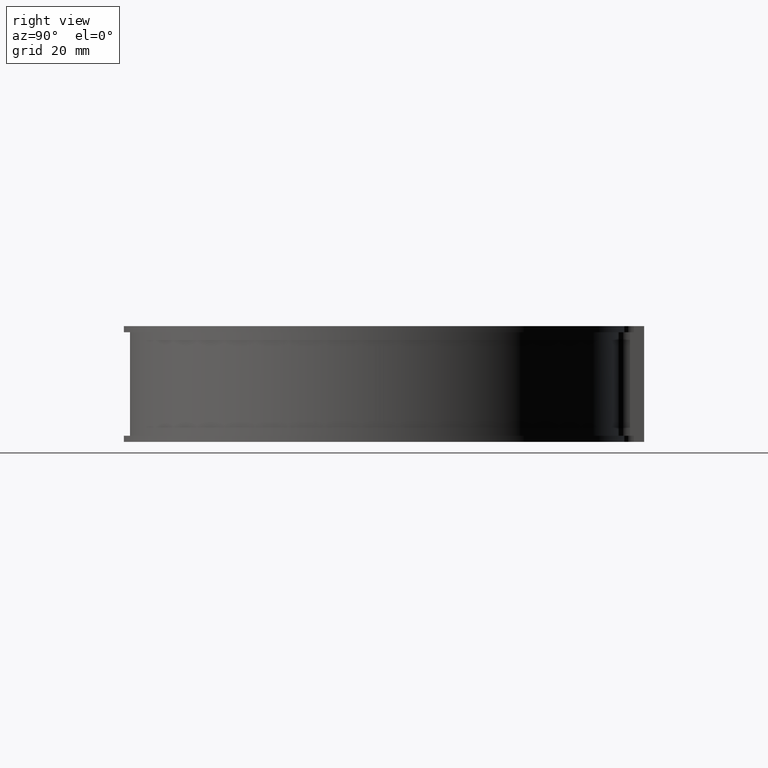
[diagram: clean part render]
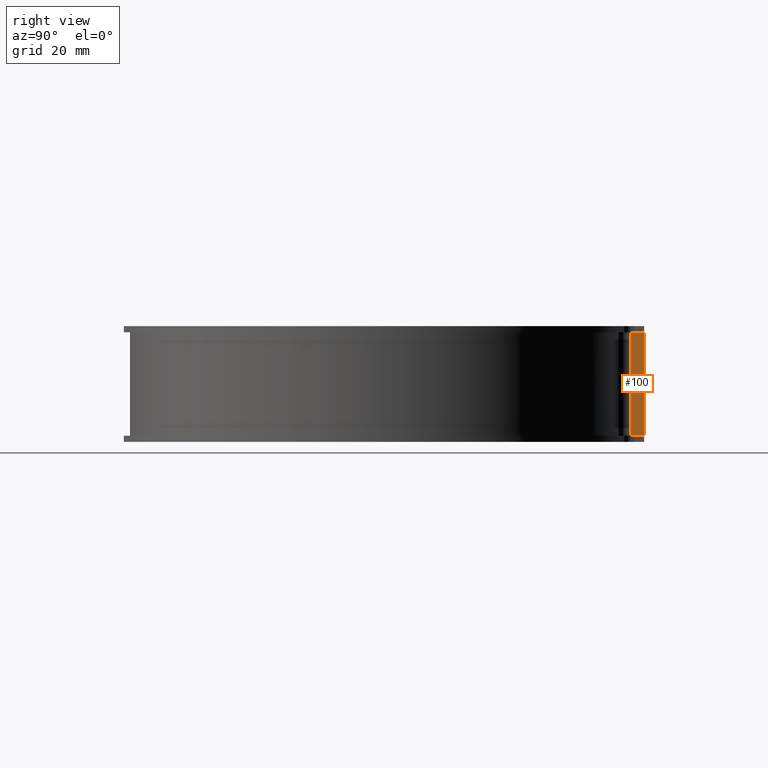
[diagram: same view with one face highlighted and labeled with its STEP entity id]
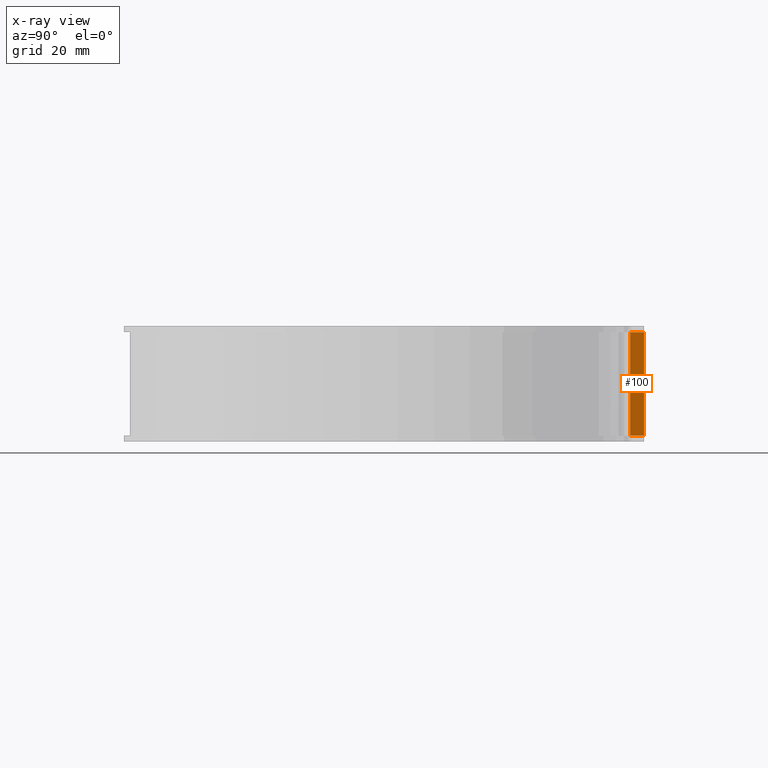
[diagram: x-ray of the same camera — body ghosted, the highlighted face saturated]
A machine part, right view. The second image highlights one B-rep face of the part: STEP entity #100.
The next image is the same camera in x-ray: the body ghosted, the highlighted face saturated — about 0% of this face is hidden behind the body in this view.
In plain terms, the highlighted planar face has unit normal (1, 0, 0).
Its self-contained STEP definition (entity closure, byte-faithful):
#100 = ADVANCED_FACE( '', ( #152 ), #153, .T. );
#152 = FACE_OUTER_BOUND( '', #204, .T. );
#153 = PLANE( '', #205 );
#204 = EDGE_LOOP( '', ( #421, #422, #423, #424 ) );
#205 = AXIS2_PLACEMENT_3D( '', #425, #426, #427 );
#421 = ORIENTED_EDGE( '', *, *, #499, .F. );
#422 = ORIENTED_EDGE( '', *, *, #453, .T. );
#423 = ORIENTED_EDGE( '', *, *, #439, .T. );
#424 = ORIENTED_EDGE( '', *, *, #498, .F. );
#425 = CARTESIAN_POINT( '', ( 4.00000000000000, 61.7545342464827, -14.0000000000000 ) );
#426 = DIRECTION( '', ( 1.00000000000000, 8.32667268468867E-017, 0.000000000000000 ) );
#427 = DIRECTION( '', ( 8.32667268468867E-017, -1.00000000000000, 0.000000000000000 ) );
#439 = EDGE_CURVE( '', #523, #521, #524, .T. );
#453 = EDGE_CURVE( '', #548, #523, #549, .T. );
#498 = EDGE_CURVE( '', #616, #521, #618, .T. );
#499 = EDGE_CURVE( '', #548, #616, #619, .T. );
#521 = VERTEX_POINT( '', #649 );
#523 = VERTEX_POINT( '', #652 );
#524 = LINE( '', #653, #654 );
#548 = VERTEX_POINT( '', #687 );
#549 = LINE( '', #688, #689 );
#616 = VERTEX_POINT( '', #782 );
#618 = LINE( '', #784, #785 );
#619 = LINE( '', #786, #787 );
#649 = CARTESIAN_POINT( '', ( 4.00000000000000, 65.1500000000000, 12.5000000000000 ) );
#652 = CARTESIAN_POINT( '', ( 4.00000000000000, 65.1500000000000, -12.5000000000000 ) );
#653 = CARTESIAN_POINT( '', ( 4.00000000000000, 65.1500000000000, -14.0000000000000 ) );
#654 = VECTOR( '', #803, 1000.00000000000 );
#687 = CARTESIAN_POINT( '', ( 4.00000000000000, 61.7545342464827, -12.5000000000000 ) );
#688 = CARTESIAN_POINT( '', ( 4.00000000000000, 61.7545342464827, -12.5000000000000 ) );
#689 = VECTOR( '', #825, 1000.00000000000 );
#782 = CARTESIAN_POINT( '', ( 4.00000000000000, 61.7545342464827, 12.5000000000000 ) );
#784 = CARTESIAN_POINT( '', ( 4.00000000000000, 61.7545342464827, 12.5000000000000 ) );
#785 = VECTOR( '', #906, 1000.00000000000 );
#786 = CARTESIAN_POINT( '', ( 4.00000000000000, 61.7545342464827, -14.0000000000000 ) );
#787 = VECTOR( '', #907, 1000.00000000000 );
#803 = DIRECTION( '', ( 0.000000000000000, 0.000000000000000, 1.00000000000000 ) );
#825 = DIRECTION( '', ( -6.93889390390723E-017, 1.00000000000000, 0.000000000000000 ) );
#906 = DIRECTION( '', ( -6.93889390390723E-017, 1.00000000000000, 0.000000000000000 ) );
#907 = DIRECTION( '', ( 0.000000000000000, 0.000000000000000, 1.00000000000000 ) );